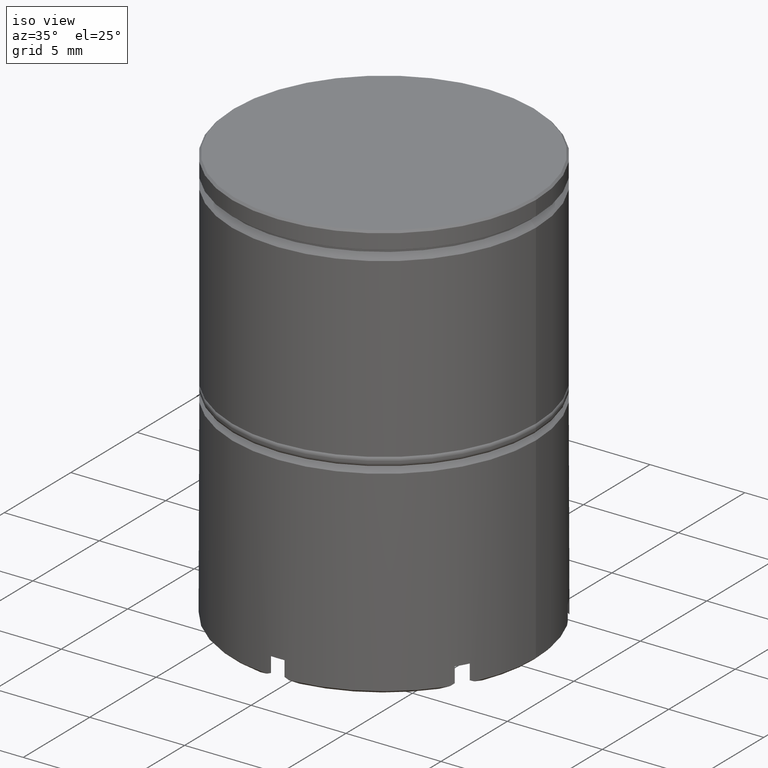
[diagram: clean part render]
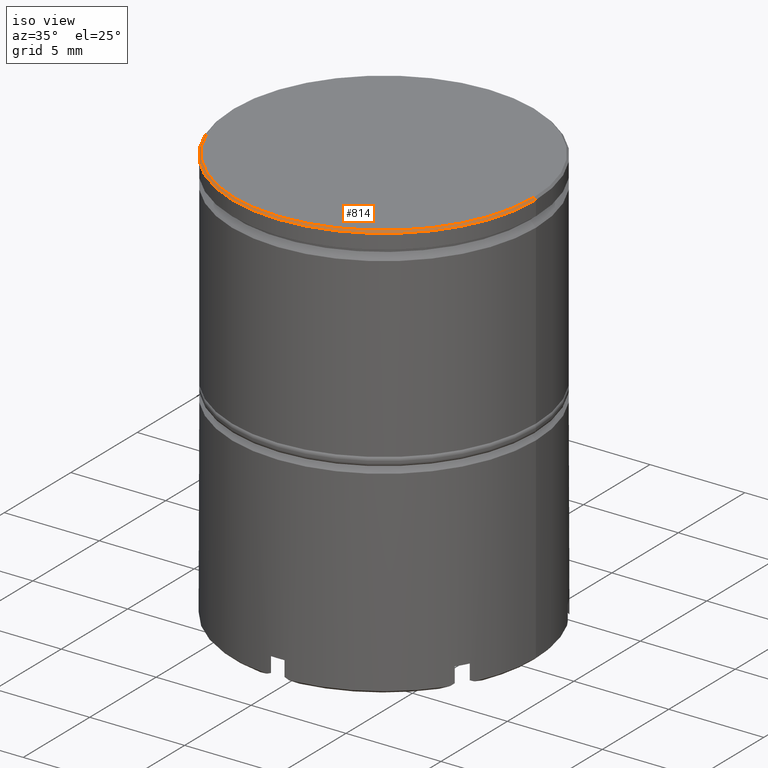
[diagram: same view with one face highlighted and labeled with its STEP entity id]
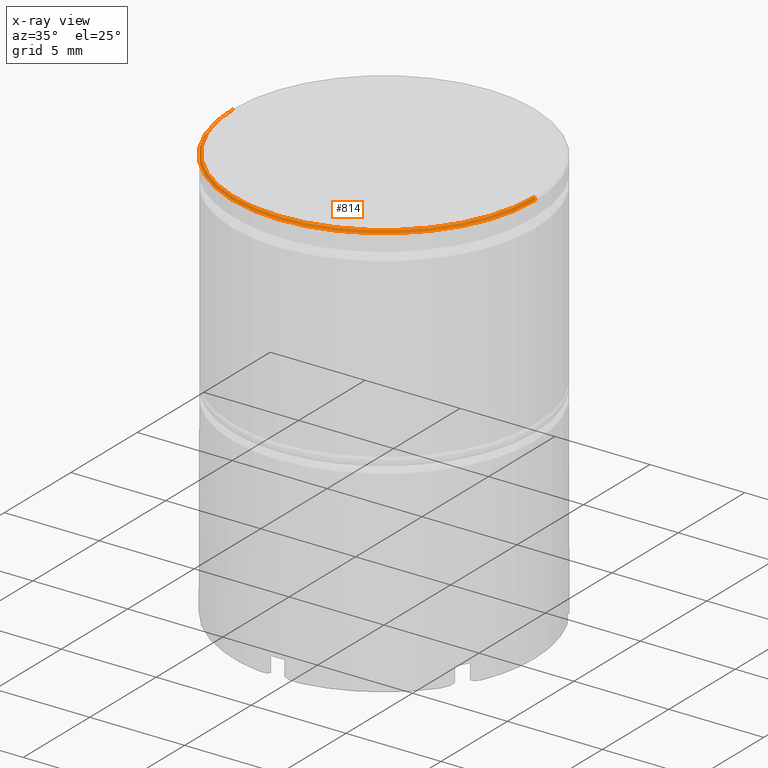
[diagram: x-ray of the same camera — body ghosted, the highlighted face saturated]
A machine part, iso view. The second image highlights one B-rep face of the part: STEP entity #814.
The next image is the same camera in x-ray: the body ghosted, the highlighted face saturated — about 0% of this face is hidden behind the body in this view.
In plain terms, the highlighted conical surface has half-angle 45 deg.
Its self-contained STEP definition (entity closure, byte-faithful):
#14 = EDGE_CURVE ( 'NONE', #1328, #1546, #731, .T. ) ;
#41 = EDGE_CURVE ( 'NONE', #1328, #473, #339, .T. ) ;
#100 = CARTESIAN_POINT ( 'NONE',  ( -7.900000000000003908, 0.000000000000000000, 0.000000000000000000 ) ) ;
#120 = CARTESIAN_POINT ( 'NONE',  ( -8.000000000000000000, 9.797174393178825657E-16, -0.09999999999999592548 ) ) ;
#184 = AXIS2_PLACEMENT_3D ( 'NONE', #1161, #471, #241 ) ;
#209 = VECTOR ( 'NONE', #1288, 1000.000000000000114 ) ;
#219 = VERTEX_POINT ( 'NONE', #1330 ) ;
#241 = DIRECTION ( 'NONE',  ( 1.000000000000000000, 0.000000000000000000, 0.000000000000000000 ) ) ;
#326 = DIRECTION ( 'NONE',  ( 0.000000000000000000, 0.000000000000000000, -1.000000000000000000 ) ) ;
#339 = CIRCLE ( 'NONE', #184, 7.900000000000003908 ) ;
#471 = DIRECTION ( 'NONE',  ( -0.000000000000000000, -0.000000000000000000, 1.000000000000000000 ) ) ;
#473 = VERTEX_POINT ( 'NONE', #1044 ) ;
#514 = VECTOR ( 'NONE', #832, 1000.000000000000114 ) ;
#536 = CONICAL_SURFACE ( 'NONE', #781, 7.900000000000003908, 0.7853981633974482790 ) ;
#570 = CARTESIAN_POINT ( 'NONE',  ( 0.000000000000000000, 0.000000000000000000, 0.000000000000000000 ) ) ;
#621 = CIRCLE ( 'NONE', #1030, 8.000000000000000000 ) ;
#642 = ORIENTED_EDGE ( 'NONE', *, *, #41, .F. ) ;
#731 = LINE ( 'NONE', #1027, #209 ) ;
#781 = AXIS2_PLACEMENT_3D ( 'NONE', #570, #1589, #1346 ) ;
#814 = ADVANCED_FACE ( 'NONE', ( #1123 ), #536, .T. ) ;
#832 = DIRECTION ( 'NONE',  ( 0.7071067811865474617, 8.659560562354932858E-17, -0.7071067811865474617 ) ) ;
#868 = LINE ( 'NONE', #1388, #514 ) ;
#1027 = CARTESIAN_POINT ( 'NONE',  ( -7.900000000000003908, 0.000000000000000000, 0.000000000000000000 ) ) ;
#1030 = AXIS2_PLACEMENT_3D ( 'NONE', #1602, #326, #1223 ) ;
#1044 = CARTESIAN_POINT ( 'NONE',  ( 7.900000000000003908, 9.735942053221460844E-16, 0.000000000000000000 ) ) ;
#1103 = EDGE_CURVE ( 'NONE', #219, #1546, #621, .T. ) ;
#1117 = EDGE_CURVE ( 'NONE', #473, #219, #868, .T. ) ;
#1123 = FACE_OUTER_BOUND ( 'NONE', #1502, .T. ) ;
#1136 = ORIENTED_EDGE ( 'NONE', *, *, #1117, .F. ) ;
#1152 = ORIENTED_EDGE ( 'NONE', *, *, #1103, .F. ) ;
#1161 = CARTESIAN_POINT ( 'NONE',  ( 0.000000000000000000, 0.000000000000000000, 0.000000000000000000 ) ) ;
#1223 = DIRECTION ( 'NONE',  ( 1.000000000000000000, 0.000000000000000000, 0.000000000000000000 ) ) ;
#1288 = DIRECTION ( 'NONE',  ( -0.7071067811865474617, 0.000000000000000000, -0.7071067811865474617 ) ) ;
#1328 = VERTEX_POINT ( 'NONE', #100 ) ;
#1329 = ORIENTED_EDGE ( 'NONE', *, *, #14, .T. ) ;
#1330 = CARTESIAN_POINT ( 'NONE',  ( 8.000000000000000000, 0.000000000000000000, -0.09999999999999592548 ) ) ;
#1346 = DIRECTION ( 'NONE',  ( -1.000000000000000000, 0.000000000000000000, 0.000000000000000000 ) ) ;
#1388 = CARTESIAN_POINT ( 'NONE',  ( 7.900000000000003908, 9.674709713264096031E-16, 0.000000000000000000 ) ) ;
#1502 = EDGE_LOOP ( 'NONE', ( #1136, #642, #1329, #1152 ) ) ;
#1546 = VERTEX_POINT ( 'NONE', #120 ) ;
#1589 = DIRECTION ( 'NONE',  ( 0.000000000000000000, 0.000000000000000000, -1.000000000000000000 ) ) ;
#1602 = CARTESIAN_POINT ( 'NONE',  ( 0.000000000000000000, 0.000000000000000000, -0.09999999999999592548 ) ) ;